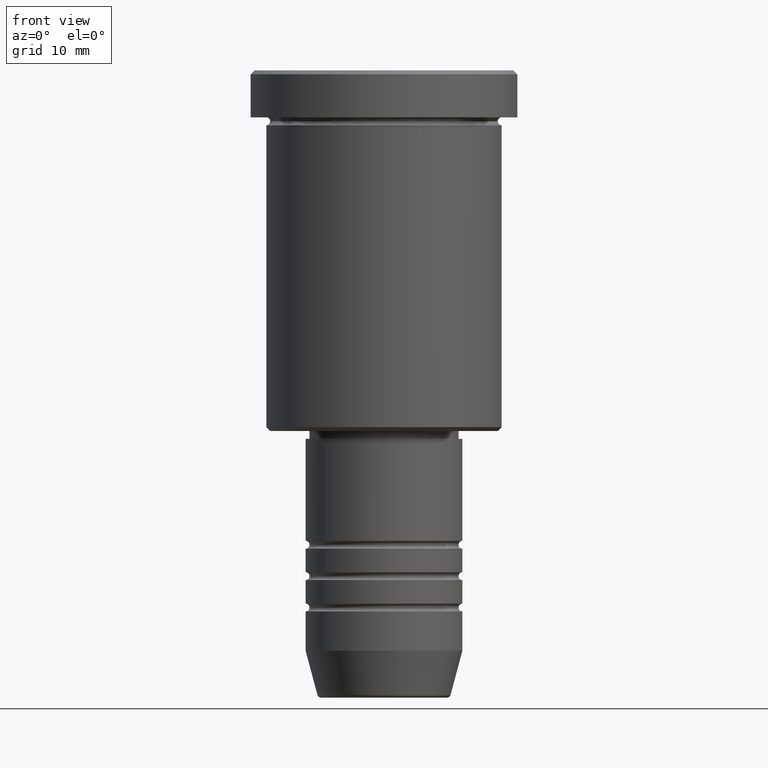
[diagram: clean part render]
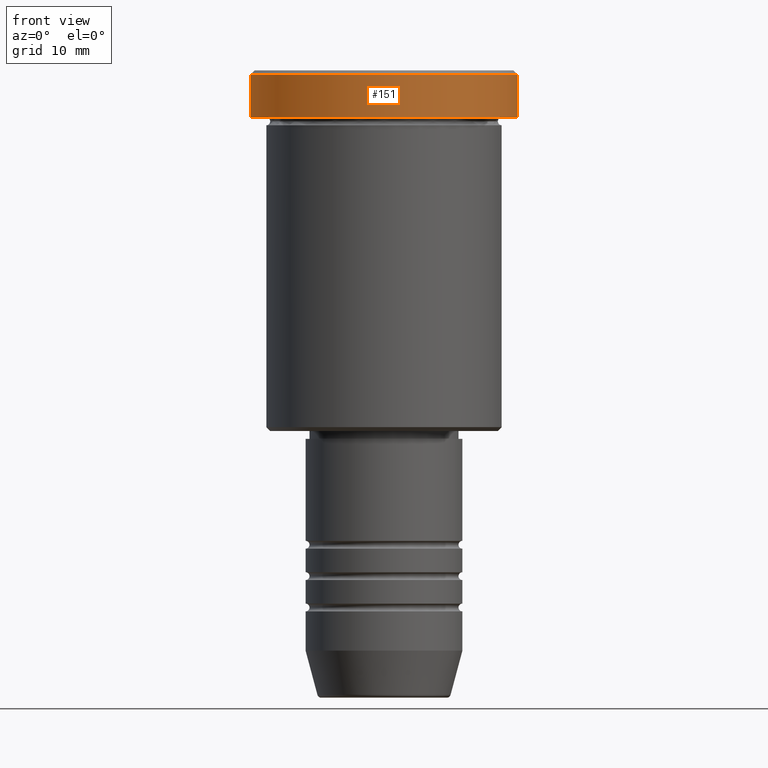
[diagram: same view with one face highlighted and labeled with its STEP entity id]
A machine part, front view. The second image highlights one B-rep face of the part: STEP entity #151.
In plain terms, the highlighted cylindrical surface (partial cylindrical patch) has radius 17 mm, axis along (-0, -0, 1).
Its self-contained STEP definition (entity closure, byte-faithful):
#17 = VERTEX_POINT ( 'NONE', #555 ) ;
#58 = VERTEX_POINT ( 'NONE', #267 ) ;
#81 = VECTOR ( 'NONE', #137, 1000.000000000000000 ) ;
#85 = EDGE_CURVE ( 'NONE', #111, #505, #1128, .T. ) ;
#110 = DIRECTION ( 'NONE',  ( -0.000000000000000000, -0.000000000000000000, 1.000000000000000000 ) ) ;
#111 = VERTEX_POINT ( 'NONE', #912 ) ;
#137 = DIRECTION ( 'NONE',  ( -0.000000000000000000, -0.000000000000000000, 1.000000000000000000 ) ) ;
#151 = ADVANCED_FACE ( 'NONE', ( #195 ), #298, .T. ) ;
#164 = DIRECTION ( 'NONE',  ( 1.000000000000000000, 0.000000000000000000, 0.000000000000000000 ) ) ;
#195 = FACE_OUTER_BOUND ( 'NONE', #1146, .T. ) ;
#232 = VECTOR ( 'NONE', #358, 1000.000000000000000 ) ;
#236 = ORIENTED_EDGE ( 'NONE', *, *, #824, .T. ) ;
#267 = CARTESIAN_POINT ( 'NONE',  ( 17.00000000000000000, 0.000000000000000000, -5.999999999999994671 ) ) ;
#293 = AXIS2_PLACEMENT_3D ( 'NONE', #1093, #792, #1159 ) ;
#298 = CYLINDRICAL_SURFACE ( 'NONE', #1141, 17.00000000000000000 ) ;
#358 = DIRECTION ( 'NONE',  ( -0.000000000000000000, -0.000000000000000000, 1.000000000000000000 ) ) ;
#395 = CARTESIAN_POINT ( 'NONE',  ( 0.000000000000000000, 0.000000000000000000, 0.000000000000000000 ) ) ;
#468 = EDGE_CURVE ( 'NONE', #58, #111, #760, .T. ) ;
#505 = VERTEX_POINT ( 'NONE', #930 ) ;
#515 = ORIENTED_EDGE ( 'NONE', *, *, #947, .F. ) ;
#542 = CARTESIAN_POINT ( 'NONE',  ( 0.000000000000000000, 0.000000000000000000, -0.5000000000000073275 ) ) ;
#543 = ORIENTED_EDGE ( 'NONE', *, *, #468, .T. ) ;
#555 = CARTESIAN_POINT ( 'NONE',  ( -17.00000000000000000, 2.081899558550500280E-15, -5.999999999999994671 ) ) ;
#590 = CARTESIAN_POINT ( 'NONE',  ( 17.00000000000000000, 0.000000000000000000, 0.000000000000000000 ) ) ;
#624 = AXIS2_PLACEMENT_3D ( 'NONE', #542, #988, #164 ) ;
#729 = CIRCLE ( 'NONE', #293, 17.00000000000000000 ) ;
#760 = LINE ( 'NONE', #590, #81 ) ;
#792 = DIRECTION ( 'NONE',  ( -0.000000000000000000, -0.000000000000000000, 1.000000000000000000 ) ) ;
#803 = LINE ( 'NONE', #1171, #232 ) ;
#824 = EDGE_CURVE ( 'NONE', #17, #58, #729, .T. ) ;
#912 = CARTESIAN_POINT ( 'NONE',  ( 17.00000000000000000, 0.000000000000000000, -0.5000000000000073275 ) ) ;
#930 = CARTESIAN_POINT ( 'NONE',  ( -17.00000000000000000, 2.081899558550500280E-15, -0.5000000000000073275 ) ) ;
#933 = ORIENTED_EDGE ( 'NONE', *, *, #85, .T. ) ;
#947 = EDGE_CURVE ( 'NONE', #17, #505, #803, .T. ) ;
#988 = DIRECTION ( 'NONE',  ( 0.000000000000000000, 0.000000000000000000, -1.000000000000000000 ) ) ;
#1093 = CARTESIAN_POINT ( 'NONE',  ( 0.000000000000000000, 0.000000000000000000, -5.999999999999994671 ) ) ;
#1103 = DIRECTION ( 'NONE',  ( 1.000000000000000000, 0.000000000000000000, 0.000000000000000000 ) ) ;
#1128 = CIRCLE ( 'NONE', #624, 17.00000000000000000 ) ;
#1141 = AXIS2_PLACEMENT_3D ( 'NONE', #395, #110, #1103 ) ;
#1146 = EDGE_LOOP ( 'NONE', ( #515, #236, #543, #933 ) ) ;
#1159 = DIRECTION ( 'NONE',  ( 1.000000000000000000, 0.000000000000000000, 0.000000000000000000 ) ) ;
#1171 = CARTESIAN_POINT ( 'NONE',  ( -17.00000000000000000, 2.081899558550500280E-15, 0.000000000000000000 ) ) ;